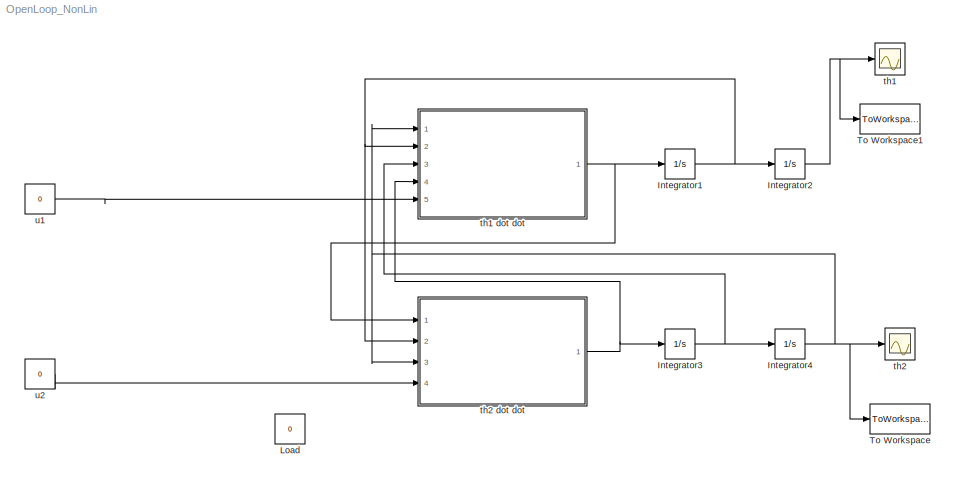
MODEL OpenLoop_NonLin
KIND model
BLOCK [Integrator] Integrator1
  Ports = [1, 1]
  SID = 3
BLOCK [Integrator] Integrator2
  InitialCondition = pi/2.1
  Ports = [1, 1]
  SID = 4
BLOCK [Integrator] Integrator3
  Ports = [1, 1]
  SID = 5
BLOCK [Integrator] Integrator4
  Ports = [1, 1]
  SID = 6
BLOCK [Constant] Load
  SID = 8
  Value = 0
BLOCK [ToWorkspace] To Workspace
  MaxDataPoints = inf
  Ports = [1]
  SID = 18
  SampleTime = -1
  VariableName = simth2
BLOCK [ToWorkspace] To Workspace1
  MaxDataPoints = inf
  Ports = [1]
  SID = 19
  SampleTime = -1
  VariableName = simth1
BLOCK [Scope] th1
  Floating = off
  NumInputPorts = 1
  Ports = [1]
  SID = 17
  ScopeSpecificationString = Simulink.scopes.TimeScopeBlockCfg('CurrentConfiguration', extmgr.ConfigurationSet(extmgr.Configuration('Core','General UI',true),extmgr.Configuration('Core','Source UI',true),extmgr.Configuration('Sources','WiredSimulink',true,'DataLoggingVariableName','ScopeData1','DataLoggingSaveFormat','StructureWithTime','DataLoggingLimitDataPoints',true,'DataLoggingDecimation','1','DataLoggingDecimateData',tr...<+911ch>
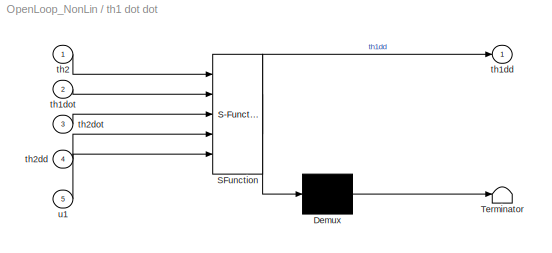
BLOCK [SubSystem] th1 dot dot
  ErrorFcn = Stateflow.Translate.translate
  PermitHierarchicalResolution = ExplicitOnly
  Ports = [5, 1]
  RequestExecContextInheritance = off
  SFBlockType = MATLAB Function
  SID = 1
  TreatAsAtomicUnit = on
BLOCK [Demux] th1 dot dot/ Demux 
  Outputs = 1
  Ports = [1, 1]
  SID = 1::40
BLOCK [S-Function] th1 dot dot/ SFunction 
  EnableBusSupport = on
  FunctionName = sf_sfun
  PortCounts = [5 2]
  Ports = [5, 2]
  SFcnIsStateOwnerBlock = off
  SFunctionDeploymentMode = off
  SID = 1::39
  Tag = Stateflow S-Function 2
BLOCK [Terminator] th1 dot dot/ Terminator 
  SID = 1::41
BLOCK [Outport] th1 dot dot/th1dd
  SID = 1::5
BLOCK [Inport] th1 dot dot/th1dot
  Port = 2
  SID = 1::23
BLOCK [Inport] th1 dot dot/th2
  SID = 1::24
BLOCK [Inport] th1 dot dot/th2dd
  Port = 4
  SID = 1::1
BLOCK [Inport] th1 dot dot/th2dot
  Port = 3
  SID = 1::43
BLOCK [Inport] th1 dot dot/u1
  Port = 5
  SID = 1::28
BLOCK [Scope] th2
  Floating = off
  NumInputPorts = 1
  Ports = [1]
  SID = 16
  ScopeSpecificationString = C++SS(StrPVP('Location','[188, 390, 512, 629]'),StrPVP('Open','off'),StrPVP('ZoomMode','xonly'),MxPVP('AxesTitles',54,'struct(''axes1'',''%<SignalLabel>'')'),MxPVP('ScopeGraphics',57,'struct(''FigureColor'',''[0.5 0.5 0.5]'',''AxesColor'',''[0 0 0]'',''AxesTickColor'',''[1 1 1]'',''LineColors'',''[1 1 0;1 0 1;0 1 1;1 0 0;0 1 0;0 0 1]'',''LineStyles'',''-|-|-|-|-|-'',''LineWidths'',''[0.5 0.5 0.5 0...<+266ch>
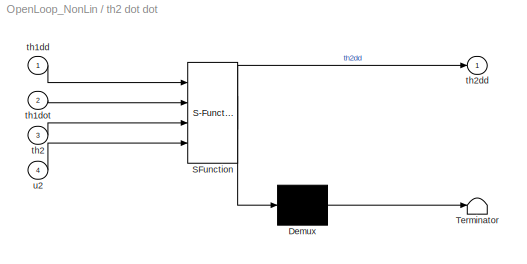
BLOCK [SubSystem] th2 dot dot
  ErrorFcn = Stateflow.Translate.translate
  PermitHierarchicalResolution = ExplicitOnly
  Ports = [4, 1]
  RequestExecContextInheritance = off
  SFBlockType = MATLAB Function
  SID = 7
  TreatAsAtomicUnit = on
BLOCK [Demux] th2 dot dot/ Demux 
  Outputs = 1
  Ports = [1, 1]
  SID = 7::41
BLOCK [S-Function] th2 dot dot/ SFunction 
  EnableBusSupport = on
  FunctionName = sf_sfun
  PortCounts = [4 2]
  Ports = [4, 2]
  SFcnIsStateOwnerBlock = off
  SFunctionDeploymentMode = off
  SID = 7::40
  Tag = Stateflow S-Function 1
BLOCK [Terminator] th2 dot dot/ Terminator 
  SID = 7::42
BLOCK [Inport] th2 dot dot/th1dd
  SID = 7::1
BLOCK [Inport] th2 dot dot/th1dot
  Port = 2
  SID = 7::23
BLOCK [Inport] th2 dot dot/th2
  Port = 3
  SID = 7::24
BLOCK [Outport] th2 dot dot/th2dd
  SID = 7::5
BLOCK [Inport] th2 dot dot/u2
  Port = 4
  SID = 7::29
BLOCK [Constant] u1
  SID = 26
  Value = 0
BLOCK [Constant] u2
  SID = 13
  Value = 0
NET Integrator1:1 -> Integrator2:1, th1 dot dot:2, th2 dot dot:2
NET Integrator2:1 -> To Workspace1:1, th1:1
NET Integrator3:1 -> Integrator4:1, th1 dot dot:3
NET Integrator4:1 -> To Workspace:1, th1 dot dot:1, th2 dot dot:3, th2:1
LINE th1 dot dot/ Demux :1 -> th1 dot dot/ Terminator :1
LINE th1 dot dot/ SFunction :1 -> th1 dot dot/ Demux :1
LINE th1 dot dot/ SFunction :2 -> th1 dot dot/th1dd:1
LINE th1 dot dot/th1dot:1 -> th1 dot dot/ SFunction :2
LINE th1 dot dot/th2:1 -> th1 dot dot/ SFunction :1
LINE th1 dot dot/th2dd:1 -> th1 dot dot/ SFunction :4
LINE th1 dot dot/th2dot:1 -> th1 dot dot/ SFunction :3
LINE th1 dot dot/u1:1 -> th1 dot dot/ SFunction :5
NET th1 dot dot:1 -> Integrator1:1, th2 dot dot:1
LINE th2 dot dot/ Demux :1 -> th2 dot dot/ Terminator :1
LINE th2 dot dot/ SFunction :1 -> th2 dot dot/ Demux :1
LINE th2 dot dot/ SFunction :2 -> th2 dot dot/th2dd:1
LINE th2 dot dot/th1dd:1 -> th2 dot dot/ SFunction :1
LINE th2 dot dot/th1dot:1 -> th2 dot dot/ SFunction :2
LINE th2 dot dot/th2:1 -> th2 dot dot/ SFunction :3
LINE th2 dot dot/u2:1 -> th2 dot dot/ SFunction :4
NET th2 dot dot:1 -> Integrator3:1, th1 dot dot:4
LINE u1:1 -> th1 dot dot:5
LINE u2:1 -> th2 dot dot:4
note: NET lines group one-source signal fan-out (src -> all destinations, sorted); 1:1 wires keep LINE
CHART th2 dot dot states=1 transitions=1
  STATE_LABEL 'eML_blk_kernel()'
CHART th1 dot dot states=1 transitions=1
  STATE_LABEL 'eML_blk_kernel()'
